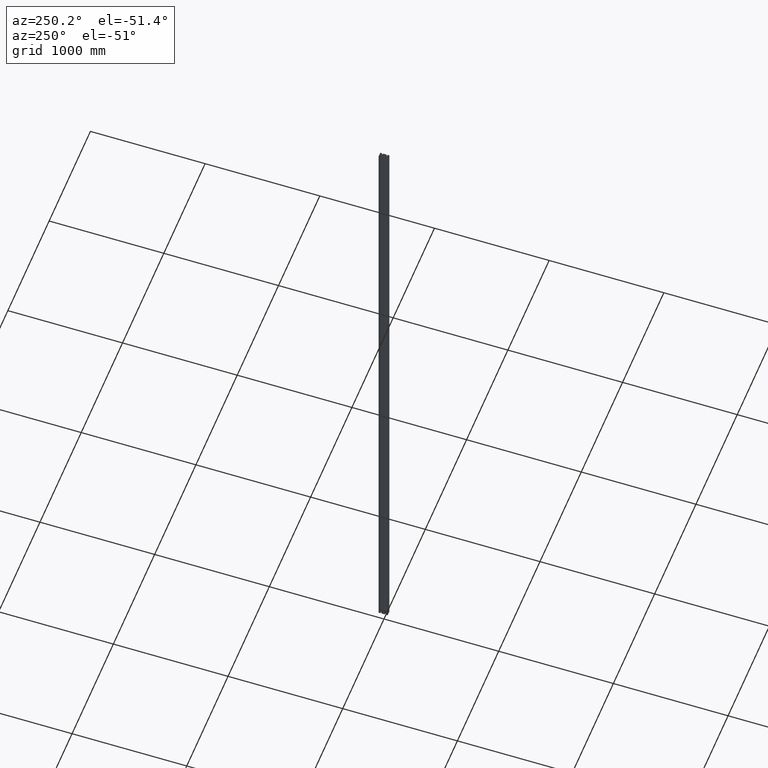
[diagram: clean part render]
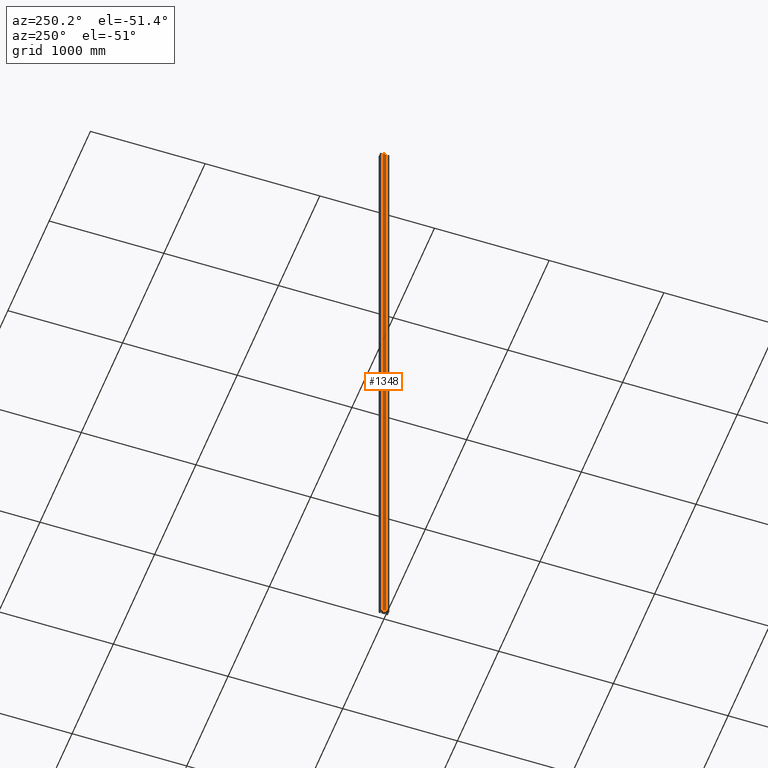
[diagram: same view with one face highlighted and labeled with its STEP entity id]
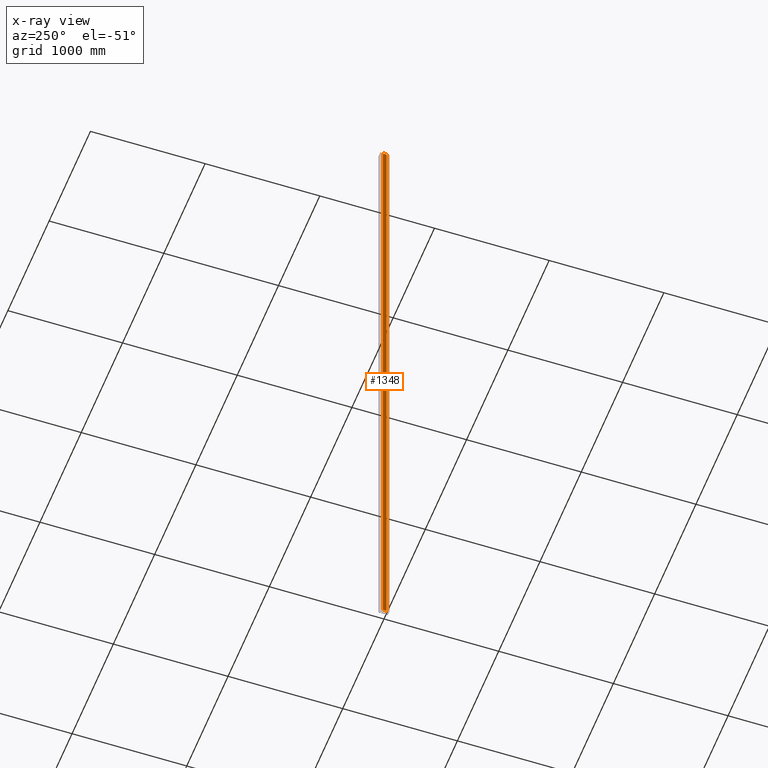
[diagram: x-ray of the same camera — body ghosted, the highlighted face saturated]
A machine part, auxiliary view. The second image highlights one B-rep face of the part: STEP entity #1348.
The next image is the same camera in x-ray: the body ghosted, the highlighted face saturated — about 0% of this face is hidden behind the body in this view.
In plain terms, the highlighted planar face has unit normal (-1, 0, 0).
Its self-contained STEP definition (entity closure, byte-faithful):
#8 = PLANE ( 'NONE',  #580 ) ;
#9 = CARTESIAN_POINT ( 'NONE',  ( -20.00000000000000000, -16.00000000000000000, -6000.000000000000000 ) ) ;
#10 = DIRECTION ( 'NONE',  ( -1.000000000000000000, 0.0000000000000000000, 0.0000000000000000000 ) ) ;
#11 = DIRECTION ( 'NONE',  ( 0.0000000000000000000, 0.0000000000000000000, 1.000000000000000000 ) ) ;
#420 = VERTEX_POINT ( 'NONE', #1893 ) ;
#421 = VERTEX_POINT ( 'NONE', #1894 ) ;
#422 = VERTEX_POINT ( 'NONE', #1895 ) ;
#580 = AXIS2_PLACEMENT_3D ( 'NONE', #9, #10, #11 ) ;
#683 = EDGE_CURVE ( 'NONE', #421, #420, #1664, .T. ) ;
#684 = EDGE_CURVE ( 'NONE', #422, #420, #1666, .T. ) ;
#685 = EDGE_CURVE ( 'NONE', #1641, #421, #1668, .T. ) ;
#686 = EDGE_CURVE ( 'NONE', #1641, #422, #1670, .T. ) ;
#923 = ORIENTED_EDGE ( 'NONE', *, *, #685, .F. ) ;
#924 = ORIENTED_EDGE ( 'NONE', *, *, #686, .T. ) ;
#925 = ORIENTED_EDGE ( 'NONE', *, *, #684, .T. ) ;
#926 = ORIENTED_EDGE ( 'NONE', *, *, #683, .F. ) ;
#1088 = EDGE_LOOP ( 'NONE', ( #923, #924, #925, #926 ) ) ;
#1295 = CARTESIAN_POINT ( 'NONE',  ( -20.00000000000000000, -16.00000000000000000, -6000.000000000000000 ) ) ;
#1348 = ADVANCED_FACE ( 'NONE', ( #1480 ), #8, .T. ) ;
#1480 = FACE_OUTER_BOUND ( 'NONE', #1088, .T. ) ;
#1606 = CARTESIAN_POINT ( 'NONE',  ( -20.00000000000000000, 16.00000000000000000, -3000.000000000000000 ) ) ;
#1607 = DIRECTION ( 'NONE',  ( 0.0000000000000000000, 0.0000000000000000000, 1.000000000000000000 ) ) ;
#1608 = CARTESIAN_POINT ( 'NONE',  ( -20.00000000000000000, 0.0000000000000000000, 0.0000000000000000000 ) ) ;
#1609 = DIRECTION ( 'NONE',  ( 0.0000000000000000000, 1.000000000000000000, 0.0000000000000000000 ) ) ;
#1610 = CARTESIAN_POINT ( 'NONE',  ( -20.00000000000000000, 0.0000000000000000000, -6000.000000000000000 ) ) ;
#1611 = DIRECTION ( 'NONE',  ( 0.0000000000000000000, 1.000000000000000000, 0.0000000000000000000 ) ) ;
#1612 = CARTESIAN_POINT ( 'NONE',  ( -20.00000000000000000, -16.00000000000000000, -3000.000000000000000 ) ) ;
#1613 = DIRECTION ( 'NONE',  ( 0.0000000000000000000, 0.0000000000000000000, 1.000000000000000000 ) ) ;
#1641 = VERTEX_POINT ( 'NONE', #1295 ) ;
#1664 = LINE ( 'NONE', #1606, #1665 ) ;
#1665 = VECTOR ( 'NONE', #1607, 1000.000000000000000 ) ;
#1666 = LINE ( 'NONE', #1608, #1667 ) ;
#1667 = VECTOR ( 'NONE', #1609, 1000.000000000000000 ) ;
#1668 = LINE ( 'NONE', #1610, #1669 ) ;
#1669 = VECTOR ( 'NONE', #1611, 1000.000000000000000 ) ;
#1670 = LINE ( 'NONE', #1612, #1671 ) ;
#1671 = VECTOR ( 'NONE', #1613, 1000.000000000000000 ) ;
#1893 = CARTESIAN_POINT ( 'NONE',  ( -20.00000000000000000, 16.00000000000000000, 0.0000000000000000000 ) ) ;
#1894 = CARTESIAN_POINT ( 'NONE',  ( -20.00000000000000000, 16.00000000000000000, -6000.000000000000000 ) ) ;
#1895 = CARTESIAN_POINT ( 'NONE',  ( -20.00000000000000000, -16.00000000000000000, 0.0000000000000000000 ) ) ;